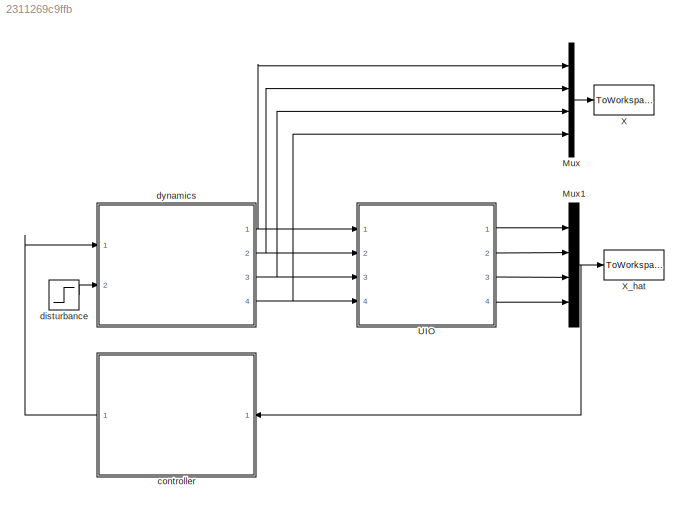
MODEL slx_2311269c9ffb
KIND model
BLOCK [Mux] Mux
  DisplayOption = bar
  Ports = [4, 1]
BLOCK [Mux] Mux1
  DisplayOption = bar
  Ports = [4, 1]
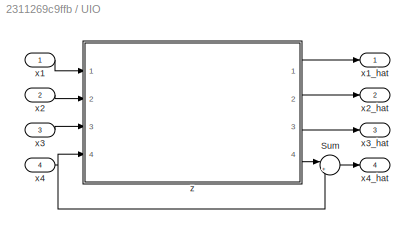
BLOCK [SubSystem] UIO
  Ports = [4, 4]
  RequestExecContextInheritance = off
BLOCK [Sum] UIO/Sum
  IconShape = round
  InputSameDT = off
  Inputs = |++
  OutDataTypeStr = Inherit: Inherit via internal rule
  Ports = [2, 1]
  SaturateOnIntegerOverflow = off
BLOCK [Inport] UIO/x1
  IconDisplay = Port number
BLOCK [Outport] UIO/x1_hat
  IconDisplay = Port number
BLOCK [Inport] UIO/x2
  IconDisplay = Port number
  Port = 2
BLOCK [Outport] UIO/x2_hat
  IconDisplay = Port number
  Port = 2
BLOCK [Inport] UIO/x3
  IconDisplay = Port number
  Port = 3
BLOCK [Outport] UIO/x3_hat
  IconDisplay = Port number
  Port = 3
BLOCK [Inport] UIO/x4
  IconDisplay = Port number
  Port = 4
BLOCK [Outport] UIO/x4_hat
  IconDisplay = Port number
  Port = 4
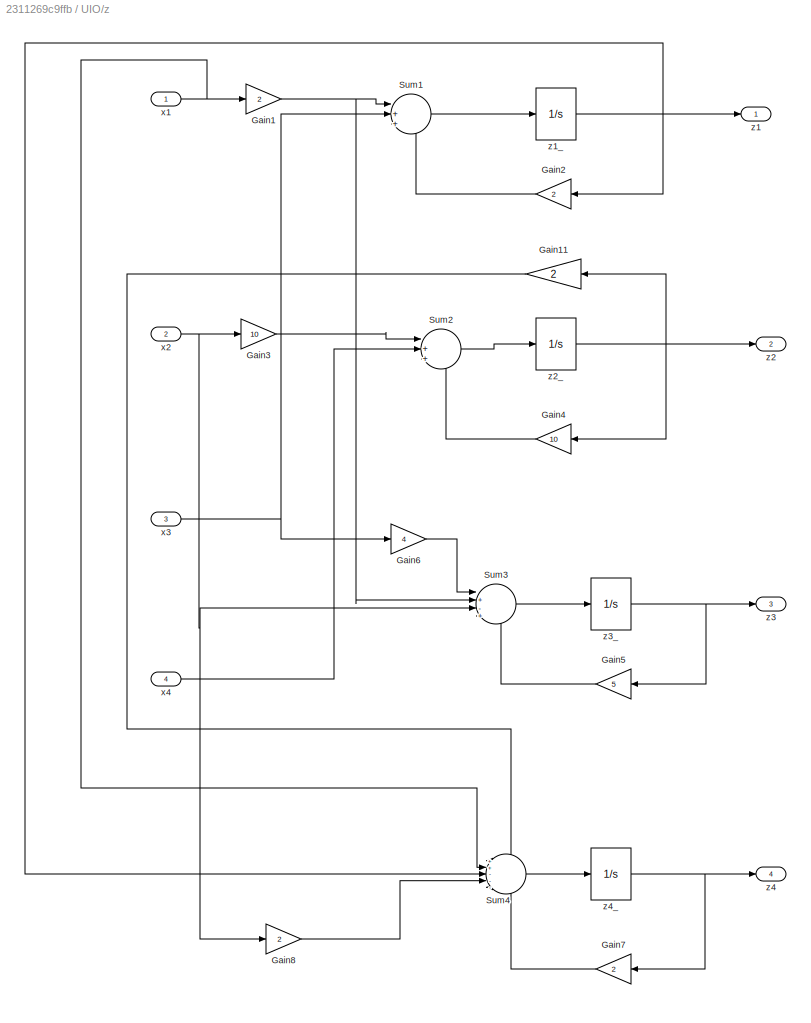
BLOCK [SubSystem] UIO/z
  Ports = [4, 4]
  RequestExecContextInheritance = off
BLOCK [Gain] UIO/z/Gain1
  Gain = 2
  OutDataTypeStr = Inherit: Inherit via internal rule
  ParamDataTypeStr = Inherit: Inherit via internal rule
  SaturateOnIntegerOverflow = off
BLOCK [Gain] UIO/z/Gain11
  Gain = 2
  OutDataTypeStr = Inherit: Inherit via internal rule
  ParamDataTypeStr = Inherit: Inherit via internal rule
  SaturateOnIntegerOverflow = off
BLOCK [Gain] UIO/z/Gain2
  Gain = 2
  OutDataTypeStr = Inherit: Inherit via internal rule
  ParamDataTypeStr = Inherit: Inherit via internal rule
  SaturateOnIntegerOverflow = off
BLOCK [Gain] UIO/z/Gain3
  Gain = 10
  OutDataTypeStr = Inherit: Inherit via internal rule
  ParamDataTypeStr = Inherit: Inherit via internal rule
  SaturateOnIntegerOverflow = off
BLOCK [Gain] UIO/z/Gain4
  Gain = 10
  OutDataTypeStr = Inherit: Inherit via internal rule
  ParamDataTypeStr = Inherit: Inherit via internal rule
  SaturateOnIntegerOverflow = off
BLOCK [Gain] UIO/z/Gain5
  Gain = 5
  OutDataTypeStr = Inherit: Inherit via internal rule
  ParamDataTypeStr = Inherit: Inherit via internal rule
  SaturateOnIntegerOverflow = off
BLOCK [Gain] UIO/z/Gain6
  Gain = 4
  OutDataTypeStr = Inherit: Inherit via internal rule
  ParamDataTypeStr = Inherit: Inherit via internal rule
  SaturateOnIntegerOverflow = off
BLOCK [Gain] UIO/z/Gain7
  Gain = 2
  OutDataTypeStr = Inherit: Inherit via internal rule
  ParamDataTypeStr = Inherit: Inherit via internal rule
  SaturateOnIntegerOverflow = off
BLOCK [Gain] UIO/z/Gain8
  Gain = 2
  OutDataTypeStr = Inherit: Inherit via internal rule
  ParamDataTypeStr = Inherit: Inherit via internal rule
  SaturateOnIntegerOverflow = off
BLOCK [Sum] UIO/z/Sum1
  IconShape = round
  InputSameDT = off
  Inputs = |++-
  OutDataTypeStr = Inherit: Inherit via internal rule
  Ports = [3, 1]
  SaturateOnIntegerOverflow = off
BLOCK [Sum] UIO/z/Sum2
  IconShape = round
  InputSameDT = off
  Inputs = |++-
  OutDataTypeStr = Inherit: Inherit via internal rule
  Ports = [3, 1]
  SaturateOnIntegerOverflow = off
BLOCK [Sum] UIO/z/Sum3
  IconShape = round
  InputSameDT = off
  Inputs = |+-+-
  OutDataTypeStr = Inherit: Inherit via internal rule
  Ports = [4, 1]
  SaturateOnIntegerOverflow = off
BLOCK [Sum] UIO/z/Sum4
  IconShape = round
  InputSameDT = off
  Inputs = ++---
  OutDataTypeStr = Inherit: Inherit via internal rule
  Ports = [5, 1]
  SaturateOnIntegerOverflow = off
BLOCK [Inport] UIO/z/x1
  IconDisplay = Port number
BLOCK [Inport] UIO/z/x2
  IconDisplay = Port number
  Port = 2
BLOCK [Inport] UIO/z/x3
  IconDisplay = Port number
  Port = 3
BLOCK [Inport] UIO/z/x4
  IconDisplay = Port number
  Port = 4
BLOCK [Outport] UIO/z/z1
  IconDisplay = Port number
BLOCK [Integrator] UIO/z/z1_
  Ports = [1, 1]
BLOCK [Outport] UIO/z/z2
  IconDisplay = Port number
  Port = 2
BLOCK [Integrator] UIO/z/z2_
  Ports = [1, 1]
BLOCK [Outport] UIO/z/z3
  IconDisplay = Port number
  Port = 3
BLOCK [Integrator] UIO/z/z3_
  Ports = [1, 1]
BLOCK [Outport] UIO/z/z4
  IconDisplay = Port number
  Port = 4
BLOCK [Integrator] UIO/z/z4_
  Ports = [1, 1]
BLOCK [ToWorkspace] X
  FixptAsFi = on
  MaxDataPoints = inf
  Ports = [1]
  SampleTime = -1
  Save2DSignal = 3-D array (concatenate along third dimension)
  VariableName = X
BLOCK [ToWorkspace] X_hat
  FixptAsFi = on
  MaxDataPoints = inf
  Ports = [1]
  SampleTime = -1
  Save2DSignal = 3-D array (concatenate along third dimension)
  VariableName = X_hat
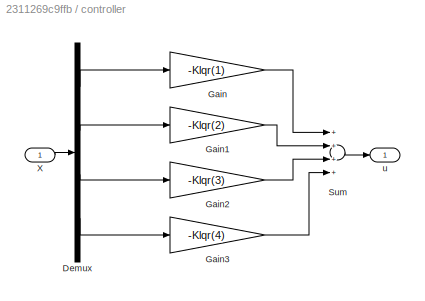
BLOCK [SubSystem] controller
  Ports = [1, 1]
  RequestExecContextInheritance = off
BLOCK [Demux] controller/Demux
  DisplayOption = bar
  Ports = [1, 4]
BLOCK [Gain] controller/Gain
  Gain = -Klqr(1)
  OutDataTypeStr = Inherit: Inherit via internal rule
  ParamDataTypeStr = Inherit: Inherit via internal rule
  SaturateOnIntegerOverflow = off
BLOCK [Gain] controller/Gain1
  Gain = -Klqr(2)
  OutDataTypeStr = Inherit: Inherit via internal rule
  ParamDataTypeStr = Inherit: Inherit via internal rule
  SaturateOnIntegerOverflow = off
BLOCK [Gain] controller/Gain2
  Gain = -Klqr(3)
  OutDataTypeStr = Inherit: Inherit via internal rule
  ParamDataTypeStr = Inherit: Inherit via internal rule
  SaturateOnIntegerOverflow = off
BLOCK [Gain] controller/Gain3
  Gain = -Klqr(4)
  OutDataTypeStr = Inherit: Inherit via internal rule
  ParamDataTypeStr = Inherit: Inherit via internal rule
  SaturateOnIntegerOverflow = off
BLOCK [Sum] controller/Sum
  InputSameDT = off
  Inputs = ++++
  OutDataTypeStr = Inherit: Inherit via internal rule
  Ports = [4, 1]
  SaturateOnIntegerOverflow = off
BLOCK [Inport] controller/X
  IconDisplay = Port number
BLOCK [Outport] controller/u
  IconDisplay = Port number
BLOCK [Step] disturbance
  After = 2
  SampleTime = 0
  Time = d
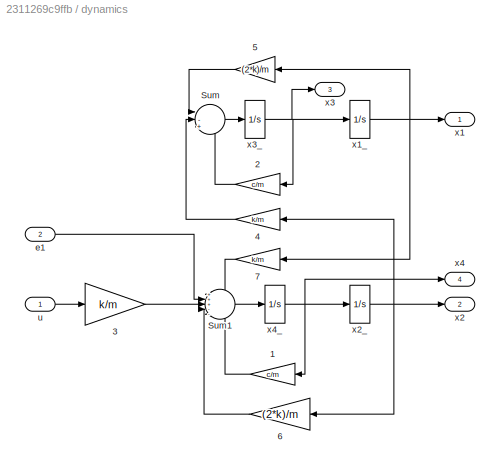
BLOCK [SubSystem] dynamics
  Ports = [2, 4]
  RequestExecContextInheritance = off
BLOCK [Gain] dynamics/  1
  Gain = c/m
  OutDataTypeStr = Inherit: Inherit via internal rule
  ParamDataTypeStr = Inherit: Inherit via internal rule
  SaturateOnIntegerOverflow = off
BLOCK [Gain] dynamics/  2
  Gain = c/m
  OutDataTypeStr = Inherit: Inherit via internal rule
  ParamDataTypeStr = Inherit: Inherit via internal rule
  SaturateOnIntegerOverflow = off
BLOCK [Gain] dynamics/  3
  Gain = k/m
  OutDataTypeStr = Inherit: Inherit via internal rule
  ParamDataTypeStr = Inherit: Inherit via internal rule
  SaturateOnIntegerOverflow = off
BLOCK [Gain] dynamics/  4
  Gain = k/m
  OutDataTypeStr = Inherit: Inherit via internal rule
  ParamDataTypeStr = Inherit: Inherit via internal rule
  SaturateOnIntegerOverflow = off
BLOCK [Gain] dynamics/  5
  Gain = (2*k)/m
  OutDataTypeStr = Inherit: Inherit via internal rule
  ParamDataTypeStr = Inherit: Inherit via internal rule
  SaturateOnIntegerOverflow = off
BLOCK [Gain] dynamics/  6
  Gain = (2*k)/m
  OutDataTypeStr = Inherit: Inherit via internal rule
  ParamDataTypeStr = Inherit: Inherit via internal rule
  SaturateOnIntegerOverflow = off
BLOCK [Gain] dynamics/  7
  Gain = k/m
  OutDataTypeStr = Inherit: Inherit via internal rule
  ParamDataTypeStr = Inherit: Inherit via internal rule
  SaturateOnIntegerOverflow = off
BLOCK [Sum] dynamics/Sum
  IconShape = round
  InputSameDT = off
  Inputs = |-+-
  OutDataTypeStr = Inherit: Inherit via internal rule
  Ports = [3, 1]
  SaturateOnIntegerOverflow = off
BLOCK [Sum] dynamics/Sum1
  IconShape = round
  InputSameDT = off
  Inputs = +++--
  OutDataTypeStr = Inherit: Inherit via internal rule
  Ports = [5, 1]
  SaturateOnIntegerOverflow = off
BLOCK [Inport] dynamics/e1
  IconDisplay = Port number
  Port = 2
BLOCK [Inport] dynamics/u
  IconDisplay = Port number
BLOCK [Outport] dynamics/x1
  IconDisplay = Port number
BLOCK [Integrator] dynamics/x1_
  InitialCondition = x1_0
  Ports = [1, 1]
BLOCK [Outport] dynamics/x2 
  IconDisplay = Port number
  Port = 2
BLOCK [Integrator] dynamics/x2_
  InitialCondition = x2_0
  Ports = [1, 1]
BLOCK [Outport] dynamics/x3
  IconDisplay = Port number
  Port = 3
BLOCK [Integrator] dynamics/x3_
  InitialCondition = x3_0
  Ports = [1, 1]
BLOCK [Outport] dynamics/x4
  IconDisplay = Port number
  Port = 4
BLOCK [Integrator] dynamics/x4_
  InitialCondition = x4_0
  Ports = [1, 1]
NET Mux1:1 -> X_hat:1, controller:1
LINE Mux:1 -> X:1
LINE UIO/Sum:1 -> UIO/x4_hat:1
LINE UIO/x1:1 -> UIO/z:1
LINE UIO/x2:1 -> UIO/z:2
LINE UIO/x3:1 -> UIO/z:3
NET UIO/x4:1 -> UIO/Sum:2, UIO/z:4
LINE UIO/z/Gain11:1 -> UIO/z/Sum4:1
NET UIO/z/Gain1:1 -> UIO/z/Sum1:1, UIO/z/Sum3:2
LINE UIO/z/Gain2:1 -> UIO/z/Sum1:3
LINE UIO/z/Gain3:1 -> UIO/z/Sum2:1
LINE UIO/z/Gain4:1 -> UIO/z/Sum2:3
LINE UIO/z/Gain5:1 -> UIO/z/Sum3:4
LINE UIO/z/Gain6:1 -> UIO/z/Sum3:1
LINE UIO/z/Gain7:1 -> UIO/z/Sum4:5
LINE UIO/z/Gain8:1 -> UIO/z/Sum4:4
LINE UIO/z/Sum1:1 -> UIO/z/z1_:1
LINE UIO/z/Sum2:1 -> UIO/z/z2_:1
LINE UIO/z/Sum3:1 -> UIO/z/z3_:1
LINE UIO/z/Sum4:1 -> UIO/z/z4_:1
NET UIO/z/x1:1 -> UIO/z/Gain1:1, UIO/z/Sum4:2
NET UIO/z/x2:1 -> UIO/z/Gain3:1, UIO/z/Gain8:1, UIO/z/Sum3:3
NET UIO/z/x3:1 -> UIO/z/Gain6:1, UIO/z/Sum1:2
LINE UIO/z/x4:1 -> UIO/z/Sum2:2
NET UIO/z/z1_:1 -> UIO/z/Gain2:1, UIO/z/Sum4:3, UIO/z/z1:1
NET UIO/z/z2_:1 -> UIO/z/Gain11:1, UIO/z/Gain4:1, UIO/z/z2:1
NET UIO/z/z3_:1 -> UIO/z/Gain5:1, UIO/z/z3:1
NET UIO/z/z4_:1 -> UIO/z/Gain7:1, UIO/z/z4:1
LINE UIO/z:1 -> UIO/x1_hat:1
LINE UIO/z:2 -> UIO/x2_hat:1
LINE UIO/z:3 -> UIO/x3_hat:1
LINE UIO/z:4 -> UIO/Sum:1
LINE UIO:1 -> Mux1:1
LINE UIO:2 -> Mux1:2
LINE UIO:3 -> Mux1:3
LINE UIO:4 -> Mux1:4
LINE controller/Demux:1 -> controller/Gain:1
LINE controller/Demux:2 -> controller/Gain1:1
LINE controller/Demux:3 -> controller/Gain2:1
LINE controller/Demux:4 -> controller/Gain3:1
LINE controller/Gain1:1 -> controller/Sum:2
LINE controller/Gain2:1 -> controller/Sum:3
LINE controller/Gain3:1 -> controller/Sum:4
LINE controller/Gain:1 -> controller/Sum:1
LINE controller/Sum:1 -> controller/u:1
LINE controller/X:1 -> controller/Demux:1
LINE controller:1 -> dynamics:1
LINE disturbance:1 -> dynamics:2
LINE dynamics/  1:1 -> dynamics/Sum1:5
LINE dynamics/  2:1 -> dynamics/Sum:3
LINE dynamics/  3:1 -> dynamics/Sum1:3
LINE dynamics/  4:1 -> dynamics/Sum:2
LINE dynamics/  5:1 -> dynamics/Sum:1
LINE dynamics/  6:1 -> dynamics/Sum1:4
LINE dynamics/  7:1 -> dynamics/Sum1:1
LINE dynamics/Sum1:1 -> dynamics/x4_:1
LINE dynamics/Sum:1 -> dynamics/x3_:1
LINE dynamics/e1:1 -> dynamics/Sum1:2
LINE dynamics/u:1 -> dynamics/  3:1
NET dynamics/x1_:1 -> dynamics/  5:1, dynamics/  7:1, dynamics/x1:1
NET dynamics/x2_:1 -> dynamics/  4:1, dynamics/  6:1, dynamics/x2 :1
NET dynamics/x3_:1 -> dynamics/  2:1, dynamics/x1_:1, dynamics/x3:1
NET dynamics/x4_:1 -> dynamics/  1:1, dynamics/x2_:1, dynamics/x4:1
NET dynamics:1 -> Mux:1, UIO:1
NET dynamics:2 -> Mux:2, UIO:2
NET dynamics:3 -> Mux:3, UIO:3
NET dynamics:4 -> Mux:4, UIO:4
note: NET lines group one-source signal fan-out (src -> all destinations, sorted); 1:1 wires keep LINE
